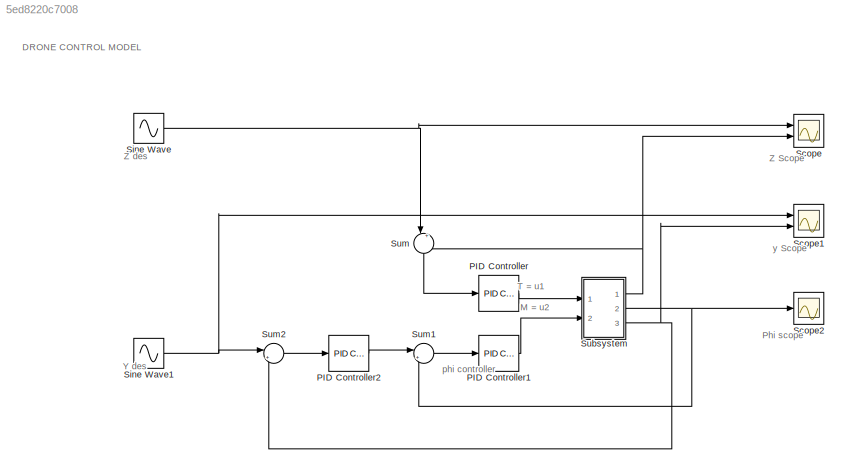
MODEL slx_5ed8220c7008
KIND model
CONFIG AbsTol = auto
CONFIG EnableMultiTasking = off
CONFIG FixedStep = auto
CONFIG MaxStep = auto
CONFIG MinStep = auto
CONFIG RelTol = 1e-3
CONFIG SampleTimeConstraint = Unconstrained
CONFIG Solver = ode45
CONFIG SolverName = ode45
CONFIG StartTime = 0.0
CONFIG StopTime = 25
BLOCK [Reference] PID Controller  REF=simulink/Continuous/PID Controller
  Ports = [1, 1]
  SourceBlock = simulink/Continuous/PID Controller
  SourceProductBaseCode = SL
  SourceType = PID 1dof
BLOCK [Reference] PID Controller1  REF=simulink/Continuous/PID Controller
  Ports = [1, 1]
  SourceBlock = simulink/Continuous/PID Controller
  SourceProductBaseCode = SL
  SourceType = PID 1dof
BLOCK [Reference] PID Controller2  REF=simulink/Continuous/PID Controller
  Ports = [1, 1]
  SourceBlock = simulink/Continuous/PID Controller
  SourceProductBaseCode = SL
  SourceType = PID 1dof
BLOCK [Scope] Scope
  Floating = off
  NumInputPorts = 2
  Ports = [2]
  ScopeSpecificationString = Simulink.scopes.TimeScopeBlockCfg('CurrentConfiguration', extmgr.ConfigurationSet(extmgr.Configuration('Core','General UI',true),extmgr.Configuration('Core','Source UI',true),extmgr.Configuration('Sources','WiredSimulink',true),extmgr.Configuration('Visuals','Time Domain',true,'SerializedDisplays',{struct('MinYLimReal','-7.06764','MaxYLimReal','6.34085','YLabelReal','','MinYLimMag','0.00000','MaxY...<+1732ch>
BLOCK [Scope] Scope1
  Floating = off
  NumInputPorts = 2
  Ports = [2]
  ScopeSpecificationString = Simulink.scopes.TimeScopeBlockCfg('CurrentConfiguration', extmgr.ConfigurationSet(extmgr.Configuration('Core','General UI',true),extmgr.Configuration('Core','Source UI',true),extmgr.Configuration('Sources','WiredSimulink',true,'DataLoggingVariableName','ScopeData1'),extmgr.Configuration('Visuals','Time Domain',true),extmgr.Configuration('Tools','Plot Navigation',true),extmgr.Configuration('Tools',...<+40ch>
BLOCK [Scope] Scope2
  Floating = off
  NumInputPorts = 1
  Ports = [1]
  ScopeSpecificationString = Simulink.scopes.TimeScopeBlockCfg('CurrentConfiguration', extmgr.ConfigurationSet(extmgr.Configuration('Core','General UI',true),extmgr.Configuration('Core','Source UI',true),extmgr.Configuration('Sources','WiredSimulink',true,'DataLoggingVariableName','ScopeData2'),extmgr.Configuration('Visuals','Time Domain',true),extmgr.Configuration('Tools','Plot Navigation',true),extmgr.Configuration('Tools',...<+40ch>
BLOCK [Sin] Sine Wave
  Amplitude = 5
  Frequency = 2
  Ports = [0, 1]
  SampleTime = 0
BLOCK [Sin] Sine Wave1
  Amplitude = 3
  Ports = [0, 1]
  SampleTime = 0
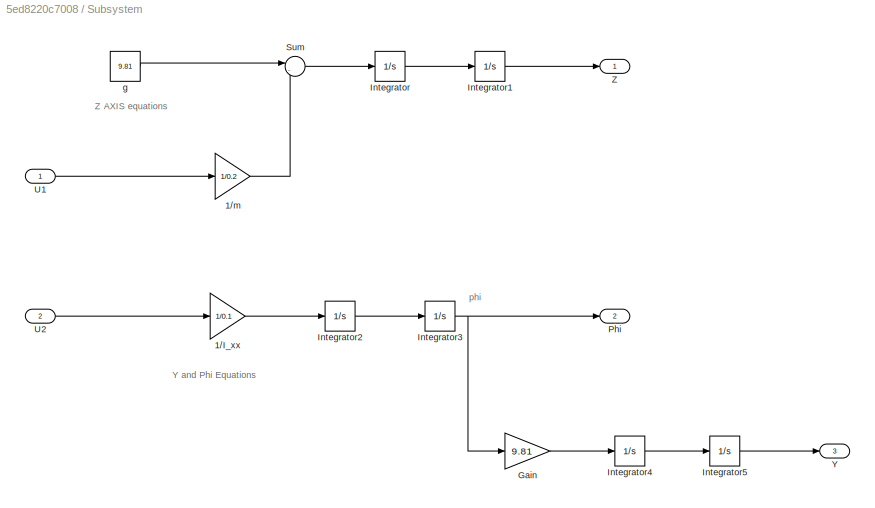
BLOCK [SubSystem] Subsystem
  Ports = [2, 3]
  RequestExecContextInheritance = off
BLOCK [Gain] Subsystem/1//I_xx
  Gain = 1/0.1
BLOCK [Gain] Subsystem/1//m
  Gain = 1/0.2
BLOCK [Gain] Subsystem/Gain
  Gain = 9.81
BLOCK [Integrator] Subsystem/Integrator
  Ports = [1, 1]
BLOCK [Integrator] Subsystem/Integrator1
  Ports = [1, 1]
BLOCK [Integrator] Subsystem/Integrator2
  Ports = [1, 1]
BLOCK [Integrator] Subsystem/Integrator3
  Ports = [1, 1]
BLOCK [Integrator] Subsystem/Integrator4
  Ports = [1, 1]
BLOCK [Integrator] Subsystem/Integrator5
  Ports = [1, 1]
BLOCK [Outport] Subsystem/Phi
  Port = 2
BLOCK [Sum] Subsystem/Sum
  Inputs = |-+
  Ports = [2, 1]
BLOCK [Inport] Subsystem/U1
BLOCK [Inport] Subsystem/U2
  Port = 2
BLOCK [Outport] Subsystem/Y
  Port = 3
BLOCK [Outport] Subsystem/Z
BLOCK [Constant] Subsystem/g
  Value = 9.81
BLOCK [Sum] Sum
  Inputs = |+-
  NameLocation = left
  Ports = [2, 1]
BLOCK [Sum] Sum1
  Inputs = |+-
  Ports = [2, 1]
BLOCK [Sum] Sum2
  Inputs = |+-
  Ports = [2, 1]
ANNOTATION (root): DRONE CONTROL MODEL
ANNOTATION (root): M = u2
ANNOTATION (root): Phi scope
ANNOTATION (root): T = u1
ANNOTATION (root): Y des
ANNOTATION (root): Z Scope
ANNOTATION (root): Z des
ANNOTATION (root): phi controller
ANNOTATION (root): y Scope
ANNOTATION Subsystem: Z AXIS equations
ANNOTATION Subsystem: Y and Phi Equations
ANNOTATION Subsystem: phi
LINE PID Controller1:1 -> Subsystem:2
LINE PID Controller2:1 -> Sum1:1
LINE PID Controller:1 -> Subsystem:1
NET Sine Wave1:1 -> Scope1:1, Sum2:1
NET Sine Wave:1 -> Scope:1, Sum:1
LINE Subsystem/1//I_xx:1 -> Subsystem/Integrator2:1
LINE Subsystem/1//m:1 -> Subsystem/Sum:2
LINE Subsystem/Gain:1 -> Subsystem/Integrator4:1
LINE Subsystem/Integrator1:1 -> Subsystem/Z:1
LINE Subsystem/Integrator2:1 -> Subsystem/Integrator3:1
NET Subsystem/Integrator3:1 -> Subsystem/Gain:1, Subsystem/Phi:1
LINE Subsystem/Integrator4:1 -> Subsystem/Integrator5:1
LINE Subsystem/Integrator5:1 -> Subsystem/Y:1
LINE Subsystem/Integrator:1 -> Subsystem/Integrator1:1
LINE Subsystem/Sum:1 -> Subsystem/Integrator:1
LINE Subsystem/U1:1 -> Subsystem/1//m:1
LINE Subsystem/U2:1 -> Subsystem/1//I_xx:1
LINE Subsystem/g:1 -> Subsystem/Sum:1
NET Subsystem:1 -> Scope:2, Sum:2
NET Subsystem:2 -> Scope2:1, Sum1:2
NET Subsystem:3 -> Scope1:2, Sum2:2
LINE Sum1:1 -> PID Controller1:1
LINE Sum2:1 -> PID Controller2:1
LINE Sum:1 -> PID Controller:1
note: NET lines group one-source signal fan-out (src -> all destinations, sorted); 1:1 wires keep LINE
